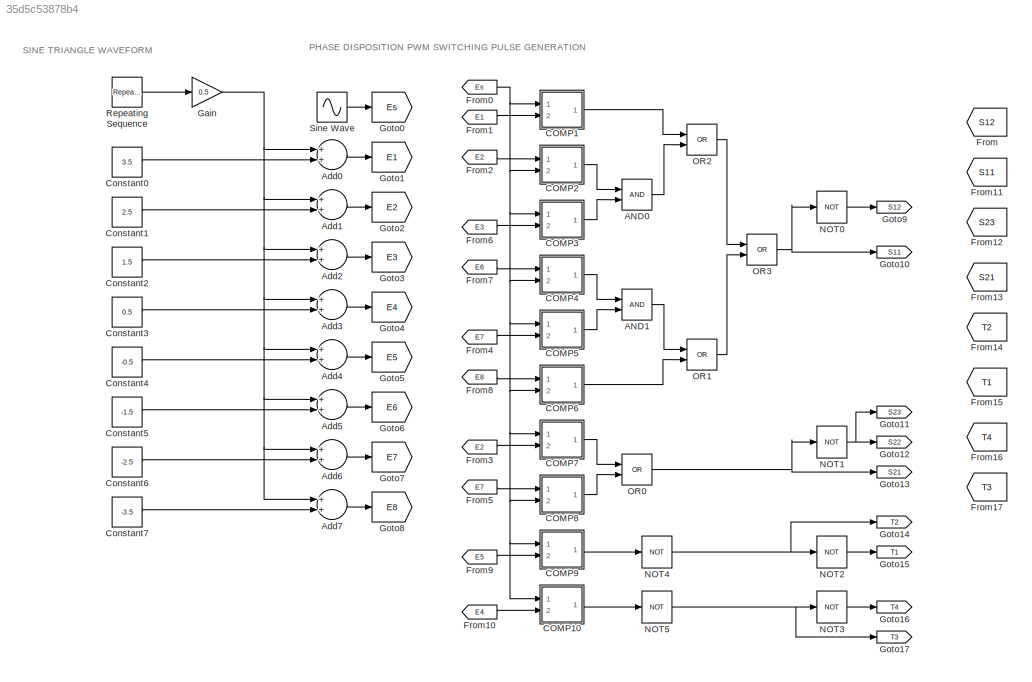
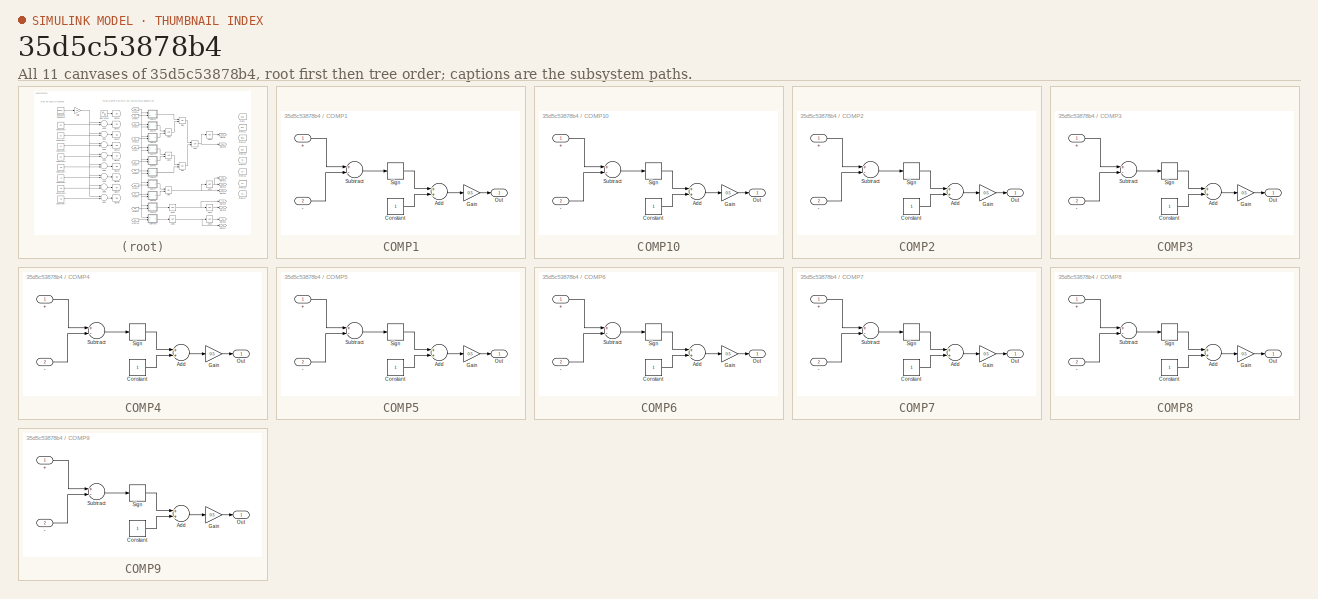
[diagram: thumbnail index - all 11 canvases of the model, root first then tree order]
MODEL slx_35d5c53878b4
KIND model
CONFIG AbsTol = auto
CONFIG FixedStep = auto
CONFIG MaxStep = auto
CONFIG MinStep = auto
CONFIG RelTol = 1e-3
CONFIG SampleTimeConstraint = Unconstrained
CONFIG Solver = VariableStepAuto
CONFIG SolverMode = Auto
CONFIG SolverName = VariableStepAuto
CONFIG StartTime = 0.0
CONFIG StopTime = 10
BLOCK [Logic] AND0
  AllPortsSameDT = off
  OutDataTypeStr = boolean
  Ports = [2, 1]
BLOCK [Logic] AND1
  AllPortsSameDT = off
  OutDataTypeStr = boolean
  Ports = [2, 1]
BLOCK [Sum] Add0
  InputSameDT = off
  OutDataTypeStr = Inherit: Inherit via internal rule
  Ports = [2, 1]
  SaturateOnIntegerOverflow = off
BLOCK [Sum] Add1
  InputSameDT = off
  OutDataTypeStr = Inherit: Inherit via internal rule
  Ports = [2, 1]
  SaturateOnIntegerOverflow = off
BLOCK [Sum] Add2
  InputSameDT = off
  OutDataTypeStr = Inherit: Inherit via internal rule
  Ports = [2, 1]
  SaturateOnIntegerOverflow = off
BLOCK [Sum] Add3
  InputSameDT = off
  OutDataTypeStr = Inherit: Inherit via internal rule
  Ports = [2, 1]
  SaturateOnIntegerOverflow = off
BLOCK [Sum] Add4
  InputSameDT = off
  OutDataTypeStr = Inherit: Inherit via internal rule
  Ports = [2, 1]
  SaturateOnIntegerOverflow = off
BLOCK [Sum] Add5
  InputSameDT = off
  OutDataTypeStr = Inherit: Inherit via internal rule
  Ports = [2, 1]
  SaturateOnIntegerOverflow = off
BLOCK [Sum] Add6
  InputSameDT = off
  OutDataTypeStr = Inherit: Inherit via internal rule
  Ports = [2, 1]
  SaturateOnIntegerOverflow = off
BLOCK [Sum] Add7
  InputSameDT = off
  OutDataTypeStr = Inherit: Inherit via internal rule
  Ports = [2, 1]
  SaturateOnIntegerOverflow = off
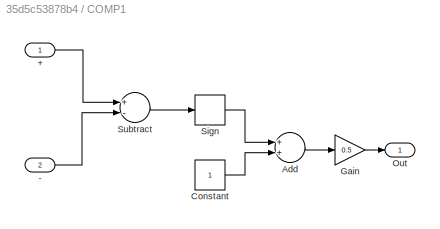
BLOCK [SubSystem] COMP1
  Ports = [2, 1]
  RequestExecContextInheritance = off
  Variant = off
BLOCK [Inport] COMP1/+
  IconDisplay = Port number
BLOCK [Inport] COMP1/-
  IconDisplay = Port number
  Port = 2
BLOCK [Sum] COMP1/Add
  InputSameDT = off
  OutDataTypeStr = Inherit: Inherit via internal rule
  Ports = [2, 1]
  SaturateOnIntegerOverflow = off
BLOCK [Constant] COMP1/Constant
BLOCK [Gain] COMP1/Gain
  Gain = 0.5
  OutDataTypeStr = Inherit: Inherit via internal rule
  ParamDataTypeStr = Inherit: Inherit via internal rule
  SaturateOnIntegerOverflow = off
BLOCK [Outport] COMP1/Out
  IconDisplay = Port number
BLOCK [Signum] COMP1/Sign
BLOCK [Sum] COMP1/Subtract
  InputSameDT = off
  Inputs = +-
  OutDataTypeStr = Inherit: Inherit via internal rule
  Ports = [2, 1]
  SaturateOnIntegerOverflow = off
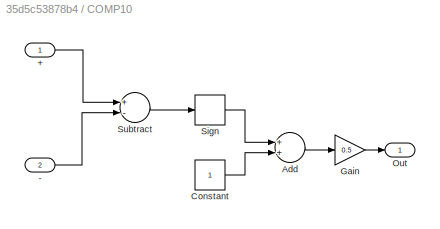
BLOCK [SubSystem] COMP10
  Ports = [2, 1]
  RequestExecContextInheritance = off
  Variant = off
BLOCK [Inport] COMP10/+
  IconDisplay = Port number
BLOCK [Inport] COMP10/-
  IconDisplay = Port number
  Port = 2
BLOCK [Sum] COMP10/Add
  InputSameDT = off
  OutDataTypeStr = Inherit: Inherit via internal rule
  Ports = [2, 1]
  SaturateOnIntegerOverflow = off
BLOCK [Constant] COMP10/Constant
BLOCK [Gain] COMP10/Gain
  Gain = 0.5
  OutDataTypeStr = Inherit: Inherit via internal rule
  ParamDataTypeStr = Inherit: Inherit via internal rule
  SaturateOnIntegerOverflow = off
BLOCK [Outport] COMP10/Out
  IconDisplay = Port number
BLOCK [Signum] COMP10/Sign
BLOCK [Sum] COMP10/Subtract
  InputSameDT = off
  Inputs = +-
  OutDataTypeStr = Inherit: Inherit via internal rule
  Ports = [2, 1]
  SaturateOnIntegerOverflow = off
BLOCK [SubSystem] COMP2
  Ports = [2, 1]
  RequestExecContextInheritance = off
  Variant = off
BLOCK [Inport] COMP2/+
  IconDisplay = Port number
BLOCK [Inport] COMP2/-
  IconDisplay = Port number
  Port = 2
BLOCK [Sum] COMP2/Add
  InputSameDT = off
  OutDataTypeStr = Inherit: Inherit via internal rule
  Ports = [2, 1]
  SaturateOnIntegerOverflow = off
BLOCK [Constant] COMP2/Constant
BLOCK [Gain] COMP2/Gain
  Gain = 0.5
  OutDataTypeStr = Inherit: Inherit via internal rule
  ParamDataTypeStr = Inherit: Inherit via internal rule
  SaturateOnIntegerOverflow = off
BLOCK [Outport] COMP2/Out
  IconDisplay = Port number
BLOCK [Signum] COMP2/Sign
BLOCK [Sum] COMP2/Subtract
  InputSameDT = off
  Inputs = +-
  OutDataTypeStr = Inherit: Inherit via internal rule
  Ports = [2, 1]
  SaturateOnIntegerOverflow = off
BLOCK [SubSystem] COMP3
  Ports = [2, 1]
  RequestExecContextInheritance = off
  Variant = off
BLOCK [Inport] COMP3/+
  IconDisplay = Port number
BLOCK [Inport] COMP3/-
  IconDisplay = Port number
  Port = 2
BLOCK [Sum] COMP3/Add
  InputSameDT = off
  OutDataTypeStr = Inherit: Inherit via internal rule
  Ports = [2, 1]
  SaturateOnIntegerOverflow = off
BLOCK [Constant] COMP3/Constant
BLOCK [Gain] COMP3/Gain
  Gain = 0.5
  OutDataTypeStr = Inherit: Inherit via internal rule
  ParamDataTypeStr = Inherit: Inherit via internal rule
  SaturateOnIntegerOverflow = off
BLOCK [Outport] COMP3/Out
  IconDisplay = Port number
BLOCK [Signum] COMP3/Sign
BLOCK [Sum] COMP3/Subtract
  InputSameDT = off
  Inputs = +-
  OutDataTypeStr = Inherit: Inherit via internal rule
  Ports = [2, 1]
  SaturateOnIntegerOverflow = off
BLOCK [SubSystem] COMP4
  Ports = [2, 1]
  RequestExecContextInheritance = off
  Variant = off
BLOCK [Inport] COMP4/+
  IconDisplay = Port number
BLOCK [Inport] COMP4/-
  IconDisplay = Port number
  Port = 2
BLOCK [Sum] COMP4/Add
  InputSameDT = off
  OutDataTypeStr = Inherit: Inherit via internal rule
  Ports = [2, 1]
  SaturateOnIntegerOverflow = off
BLOCK [Constant] COMP4/Constant
BLOCK [Gain] COMP4/Gain
  Gain = 0.5
  OutDataTypeStr = Inherit: Inherit via internal rule
  ParamDataTypeStr = Inherit: Inherit via internal rule
  SaturateOnIntegerOverflow = off
BLOCK [Outport] COMP4/Out
  IconDisplay = Port number
BLOCK [Signum] COMP4/Sign
BLOCK [Sum] COMP4/Subtract
  InputSameDT = off
  Inputs = +-
  OutDataTypeStr = Inherit: Inherit via internal rule
  Ports = [2, 1]
  SaturateOnIntegerOverflow = off
BLOCK [SubSystem] COMP5
  Ports = [2, 1]
  RequestExecContextInheritance = off
  Variant = off
BLOCK [Inport] COMP5/+
  IconDisplay = Port number
BLOCK [Inport] COMP5/-
  IconDisplay = Port number
  Port = 2
BLOCK [Sum] COMP5/Add
  InputSameDT = off
  OutDataTypeStr = Inherit: Inherit via internal rule
  Ports = [2, 1]
  SaturateOnIntegerOverflow = off
BLOCK [Constant] COMP5/Constant
BLOCK [Gain] COMP5/Gain
  Gain = 0.5
  OutDataTypeStr = Inherit: Inherit via internal rule
  ParamDataTypeStr = Inherit: Inherit via internal rule
  SaturateOnIntegerOverflow = off
BLOCK [Outport] COMP5/Out
  IconDisplay = Port number
BLOCK [Signum] COMP5/Sign
BLOCK [Sum] COMP5/Subtract
  InputSameDT = off
  Inputs = +-
  OutDataTypeStr = Inherit: Inherit via internal rule
  Ports = [2, 1]
  SaturateOnIntegerOverflow = off
BLOCK [SubSystem] COMP6
  Ports = [2, 1]
  RequestExecContextInheritance = off
  Variant = off
BLOCK [Inport] COMP6/+
  IconDisplay = Port number
BLOCK [Inport] COMP6/-
  IconDisplay = Port number
  Port = 2
BLOCK [Sum] COMP6/Add
  InputSameDT = off
  OutDataTypeStr = Inherit: Inherit via internal rule
  Ports = [2, 1]
  SaturateOnIntegerOverflow = off
BLOCK [Constant] COMP6/Constant
BLOCK [Gain] COMP6/Gain
  Gain = 0.5
  OutDataTypeStr = Inherit: Inherit via internal rule
  ParamDataTypeStr = Inherit: Inherit via internal rule
  SaturateOnIntegerOverflow = off
BLOCK [Outport] COMP6/Out
  IconDisplay = Port number
BLOCK [Signum] COMP6/Sign
BLOCK [Sum] COMP6/Subtract
  InputSameDT = off
  Inputs = +-
  OutDataTypeStr = Inherit: Inherit via internal rule
  Ports = [2, 1]
  SaturateOnIntegerOverflow = off
BLOCK [SubSystem] COMP7
  Ports = [2, 1]
  RequestExecContextInheritance = off
  Variant = off
BLOCK [Inport] COMP7/+
  IconDisplay = Port number
BLOCK [Inport] COMP7/-
  IconDisplay = Port number
  Port = 2
BLOCK [Sum] COMP7/Add
  InputSameDT = off
  OutDataTypeStr = Inherit: Inherit via internal rule
  Ports = [2, 1]
  SaturateOnIntegerOverflow = off
BLOCK [Constant] COMP7/Constant
BLOCK [Gain] COMP7/Gain
  Gain = 0.5
  OutDataTypeStr = Inherit: Inherit via internal rule
  ParamDataTypeStr = Inherit: Inherit via internal rule
  SaturateOnIntegerOverflow = off
BLOCK [Outport] COMP7/Out
  IconDisplay = Port number
BLOCK [Signum] COMP7/Sign
BLOCK [Sum] COMP7/Subtract
  InputSameDT = off
  Inputs = +-
  OutDataTypeStr = Inherit: Inherit via internal rule
  Ports = [2, 1]
  SaturateOnIntegerOverflow = off
BLOCK [SubSystem] COMP8
  Ports = [2, 1]
  RequestExecContextInheritance = off
  Variant = off
BLOCK [Inport] COMP8/+
  IconDisplay = Port number
BLOCK [Inport] COMP8/-
  IconDisplay = Port number
  Port = 2
BLOCK [Sum] COMP8/Add
  InputSameDT = off
  OutDataTypeStr = Inherit: Inherit via internal rule
  Ports = [2, 1]
  SaturateOnIntegerOverflow = off
BLOCK [Constant] COMP8/Constant
BLOCK [Gain] COMP8/Gain
  Gain = 0.5
  OutDataTypeStr = Inherit: Inherit via internal rule
  ParamDataTypeStr = Inherit: Inherit via internal rule
  SaturateOnIntegerOverflow = off
BLOCK [Outport] COMP8/Out
  IconDisplay = Port number
BLOCK [Signum] COMP8/Sign
BLOCK [Sum] COMP8/Subtract
  InputSameDT = off
  Inputs = +-
  OutDataTypeStr = Inherit: Inherit via internal rule
  Ports = [2, 1]
  SaturateOnIntegerOverflow = off
BLOCK [SubSystem] COMP9
  Ports = [2, 1]
  RequestExecContextInheritance = off
  Variant = off
BLOCK [Inport] COMP9/+
  IconDisplay = Port number
BLOCK [Inport] COMP9/-
  IconDisplay = Port number
  Port = 2
BLOCK [Sum] COMP9/Add
  InputSameDT = off
  OutDataTypeStr = Inherit: Inherit via internal rule
  Ports = [2, 1]
  SaturateOnIntegerOverflow = off
BLOCK [Constant] COMP9/Constant
BLOCK [Gain] COMP9/Gain
  Gain = 0.5
  OutDataTypeStr = Inherit: Inherit via internal rule
  ParamDataTypeStr = Inherit: Inherit via internal rule
  SaturateOnIntegerOverflow = off
BLOCK [Outport] COMP9/Out
  IconDisplay = Port number
BLOCK [Signum] COMP9/Sign
BLOCK [Sum] COMP9/Subtract
  InputSameDT = off
  Inputs = +-
  OutDataTypeStr = Inherit: Inherit via internal rule
  Ports = [2, 1]
  SaturateOnIntegerOverflow = off
BLOCK [Constant] Constant0
  Value = 3.5
BLOCK [Constant] Constant1
  Value = 2.5
BLOCK [Constant] Constant2
  Value = 1.5
BLOCK [Constant] Constant3
  Value = 0.5
BLOCK [Constant] Constant4
  Value = -0.5
BLOCK [Constant] Constant5
  Value = -1.5
BLOCK [Constant] Constant6
  Value = -2.5
BLOCK [Constant] Constant7
  Value = -3.5
BLOCK [From] From
  GotoTag = S12
BLOCK [From] From0
  GotoTag = Es
  TagVisibility = global
BLOCK [From] From1
  GotoTag = E1
  TagVisibility = global
BLOCK [From] From10
  GotoTag = E4
  TagVisibility = global
BLOCK [From] From11
  GotoTag = S11
BLOCK [From] From12
  GotoTag = S23
BLOCK [From] From13
  GotoTag = S21
BLOCK [From] From14
  GotoTag = T2
BLOCK [From] From15
  GotoTag = T1
BLOCK [From] From16
  GotoTag = T4
BLOCK [From] From17
  GotoTag = T3
BLOCK [From] From2
  GotoTag = E2
  TagVisibility = global
BLOCK [From] From3
  GotoTag = E2
  TagVisibility = global
BLOCK [From] From4
  GotoTag = E7
  TagVisibility = global
BLOCK [From] From5
  GotoTag = E7
  TagVisibility = global
BLOCK [From] From6
  GotoTag = E3
  TagVisibility = global
BLOCK [From] From7
  GotoTag = E6
  TagVisibility = global
BLOCK [From] From8
  GotoTag = E8
  TagVisibility = global
BLOCK [From] From9
  GotoTag = E5
  TagVisibility = global
BLOCK [Gain] Gain
  Gain = 0.5
  OutDataTypeStr = Inherit: Inherit via internal rule
  ParamDataTypeStr = Inherit: Inherit via internal rule
  SaturateOnIntegerOverflow = off
BLOCK [Goto] Goto0
  GotoTag = Es
  TagVisibility = global
BLOCK [Goto] Goto1
  GotoTag = E1
  TagVisibility = global
BLOCK [Goto] Goto10
  GotoTag = S11
  TagVisibility = global
BLOCK [Goto] Goto11
  GotoTag = S23
  TagVisibility = global
BLOCK [Goto] Goto12
  GotoTag = S22
  TagVisibility = global
BLOCK [Goto] Goto13
  GotoTag = S21
  TagVisibility = global
BLOCK [Goto] Goto14
  GotoTag = T2
  TagVisibility = global
BLOCK [Goto] Goto15
  GotoTag = T1
  TagVisibility = global
BLOCK [Goto] Goto16
  GotoTag = T4
  TagVisibility = global
BLOCK [Goto] Goto17
  GotoTag = T3
  TagVisibility = global
BLOCK [Goto] Goto2
  GotoTag = E2
  TagVisibility = global
BLOCK [Goto] Goto3
  GotoTag = E3
  TagVisibility = global
BLOCK [Goto] Goto4
  GotoTag = E4
  TagVisibility = global
BLOCK [Goto] Goto5
  GotoTag = E5
  TagVisibility = global
BLOCK [Goto] Goto6
  GotoTag = E6
  TagVisibility = global
BLOCK [Goto] Goto7
  GotoTag = E7
  TagVisibility = global
BLOCK [Goto] Goto8
  GotoTag = E8
  TagVisibility = global
BLOCK [Goto] Goto9
  GotoTag = S12
  TagVisibility = global
BLOCK [Logic] NOT0
  AllPortsSameDT = off
  Operator = NOT
  OutDataTypeStr = boolean
  Ports = [1, 1]
BLOCK [Logic] NOT1
  AllPortsSameDT = off
  Operator = NOT
  OutDataTypeStr = boolean
  Ports = [1, 1]
BLOCK [Logic] NOT2
  AllPortsSameDT = off
  Operator = NOT
  OutDataTypeStr = boolean
  Ports = [1, 1]
BLOCK [Logic] NOT3
  AllPortsSameDT = off
  Operator = NOT
  OutDataTypeStr = boolean
  Ports = [1, 1]
BLOCK [Logic] NOT4
  AllPortsSameDT = off
  Operator = NOT
  OutDataTypeStr = boolean
  Ports = [1, 1]
BLOCK [Logic] NOT5
  AllPortsSameDT = off
  Operator = NOT
  OutDataTypeStr = boolean
  Ports = [1, 1]
BLOCK [Logic] OR0
  AllPortsSameDT = off
  Operator = OR
  OutDataTypeStr = boolean
  Ports = [2, 1]
BLOCK [Logic] OR1
  AllPortsSameDT = off
  Operator = OR
  OutDataTypeStr = boolean
  Ports = [2, 1]
BLOCK [Logic] OR2
  AllPortsSameDT = off
  Operator = OR
  OutDataTypeStr = boolean
  Ports = [2, 1]
BLOCK [Logic] OR3
  AllPortsSameDT = off
  Operator = OR
  OutDataTypeStr = boolean
  Ports = [2, 1]
BLOCK [Reference] Repeating Sequence  REF=simulink/Sources/Repeating
Sequence
  Ports = [0, 1]
  SourceBlock = simulink/Sources/Repeating\nSequence
  SourceType = Repeating table
BLOCK [Sin] Sine Wave
  Amplitude = 4
  Frequency = 2*pi*50
  Ports = [0, 1]
  SampleTime = 0
ANNOTATION (root): PHASE DISPOSITION PWM SWITCHING PULSE GENERATION
ANNOTATION (root): SINE TRIANGLE WAVEFORM
LINE AND0:1 -> OR2:2
LINE AND1:1 -> OR1:1
LINE Add0:1 -> Goto1:1
LINE Add1:1 -> Goto2:1
LINE Add2:1 -> Goto3:1
LINE Add3:1 -> Goto4:1
LINE Add4:1 -> Goto5:1
LINE Add5:1 -> Goto6:1
LINE Add6:1 -> Goto7:1
LINE Add7:1 -> Goto8:1
LINE COMP1/+:1 -> COMP1/Subtract:1
LINE COMP1/-:1 -> COMP1/Subtract:2
LINE COMP1/Add:1 -> COMP1/Gain:1
LINE COMP1/Constant:1 -> COMP1/Add:2
LINE COMP1/Gain:1 -> COMP1/Out:1
LINE COMP1/Sign:1 -> COMP1/Add:1
LINE COMP1/Subtract:1 -> COMP1/Sign:1
LINE COMP10/+:1 -> COMP10/Subtract:1
LINE COMP10/-:1 -> COMP10/Subtract:2
LINE COMP10/Add:1 -> COMP10/Gain:1
LINE COMP10/Constant:1 -> COMP10/Add:2
LINE COMP10/Gain:1 -> COMP10/Out:1
LINE COMP10/Sign:1 -> COMP10/Add:1
LINE COMP10/Subtract:1 -> COMP10/Sign:1
LINE COMP10:1 -> NOT5:1
LINE COMP1:1 -> OR2:1
LINE COMP2/+:1 -> COMP2/Subtract:1
LINE COMP2/-:1 -> COMP2/Subtract:2
LINE COMP2/Add:1 -> COMP2/Gain:1
LINE COMP2/Constant:1 -> COMP2/Add:2
LINE COMP2/Gain:1 -> COMP2/Out:1
LINE COMP2/Sign:1 -> COMP2/Add:1
LINE COMP2/Subtract:1 -> COMP2/Sign:1
LINE COMP2:1 -> AND0:1
LINE COMP3/+:1 -> COMP3/Subtract:1
LINE COMP3/-:1 -> COMP3/Subtract:2
LINE COMP3/Add:1 -> COMP3/Gain:1
LINE COMP3/Constant:1 -> COMP3/Add:2
LINE COMP3/Gain:1 -> COMP3/Out:1
LINE COMP3/Sign:1 -> COMP3/Add:1
LINE COMP3/Subtract:1 -> COMP3/Sign:1
LINE COMP3:1 -> AND0:2
LINE COMP4/+:1 -> COMP4/Subtract:1
LINE COMP4/-:1 -> COMP4/Subtract:2
LINE COMP4/Add:1 -> COMP4/Gain:1
LINE COMP4/Constant:1 -> COMP4/Add:2
LINE COMP4/Gain:1 -> COMP4/Out:1
LINE COMP4/Sign:1 -> COMP4/Add:1
LINE COMP4/Subtract:1 -> COMP4/Sign:1
LINE COMP4:1 -> AND1:1
LINE COMP5/+:1 -> COMP5/Subtract:1
LINE COMP5/-:1 -> COMP5/Subtract:2
LINE COMP5/Add:1 -> COMP5/Gain:1
LINE COMP5/Constant:1 -> COMP5/Add:2
LINE COMP5/Gain:1 -> COMP5/Out:1
LINE COMP5/Sign:1 -> COMP5/Add:1
LINE COMP5/Subtract:1 -> COMP5/Sign:1
LINE COMP5:1 -> AND1:2
LINE COMP6/+:1 -> COMP6/Subtract:1
LINE COMP6/-:1 -> COMP6/Subtract:2
LINE COMP6/Add:1 -> COMP6/Gain:1
LINE COMP6/Constant:1 -> COMP6/Add:2
LINE COMP6/Gain:1 -> COMP6/Out:1
LINE COMP6/Sign:1 -> COMP6/Add:1
LINE COMP6/Subtract:1 -> COMP6/Sign:1
LINE COMP6:1 -> OR1:2
LINE COMP7/+:1 -> COMP7/Subtract:1
LINE COMP7/-:1 -> COMP7/Subtract:2
LINE COMP7/Add:1 -> COMP7/Gain:1
LINE COMP7/Constant:1 -> COMP7/Add:2
LINE COMP7/Gain:1 -> COMP7/Out:1
LINE COMP7/Sign:1 -> COMP7/Add:1
LINE COMP7/Subtract:1 -> COMP7/Sign:1
LINE COMP7:1 -> OR0:1
LINE COMP8/+:1 -> COMP8/Subtract:1
LINE COMP8/-:1 -> COMP8/Subtract:2
LINE COMP8/Add:1 -> COMP8/Gain:1
LINE COMP8/Constant:1 -> COMP8/Add:2
LINE COMP8/Gain:1 -> COMP8/Out:1
LINE COMP8/Sign:1 -> COMP8/Add:1
LINE COMP8/Subtract:1 -> COMP8/Sign:1
LINE COMP8:1 -> OR0:2
LINE COMP9/+:1 -> COMP9/Subtract:1
LINE COMP9/-:1 -> COMP9/Subtract:2
LINE COMP9/Add:1 -> COMP9/Gain:1
LINE COMP9/Constant:1 -> COMP9/Add:2
LINE COMP9/Gain:1 -> COMP9/Out:1
LINE COMP9/Sign:1 -> COMP9/Add:1
LINE COMP9/Subtract:1 -> COMP9/Sign:1
LINE COMP9:1 -> NOT4:1
LINE Constant0:1 -> Add0:2
LINE Constant1:1 -> Add1:2
LINE Constant2:1 -> Add2:2
LINE Constant3:1 -> Add3:2
LINE Constant4:1 -> Add4:2
LINE Constant5:1 -> Add5:2
LINE Constant6:1 -> Add6:2
LINE Constant7:1 -> Add7:2
NET From0:1 -> COMP10:1, COMP1:1, COMP2:2, COMP3:1, COMP4:2, COMP5:1, COMP6:2, COMP7:1, COMP8:2, COMP9:1
LINE From10:1 -> COMP10:2
LINE From1:1 -> COMP1:2
LINE From2:1 -> COMP2:1
LINE From3:1 -> COMP7:2
LINE From4:1 -> COMP5:2
LINE From5:1 -> COMP8:1
LINE From6:1 -> COMP3:2
LINE From7:1 -> COMP4:1
LINE From8:1 -> COMP6:1
LINE From9:1 -> COMP9:2
NET Gain:1 -> Add0:1, Add1:1, Add2:1, Add3:1, Add4:1, Add5:1, Add6:1, Add7:1
LINE NOT0:1 -> Goto9:1
NET NOT1:1 -> Goto11:1, Goto12:1
LINE NOT2:1 -> Goto15:1
LINE NOT3:1 -> Goto16:1
NET NOT4:1 -> Goto14:1, NOT2:1
NET NOT5:1 -> Goto17:1, NOT3:1
NET OR0:1 -> Goto13:1, NOT1:1
LINE OR1:1 -> OR3:2
LINE OR2:1 -> OR3:1
NET OR3:1 -> Goto10:1, NOT0:1
LINE Repeating Sequence:1 -> Gain:1
LINE Sine Wave:1 -> Goto0:1
note: NET lines group one-source signal fan-out (src -> all destinations, sorted); 1:1 wires keep LINE
